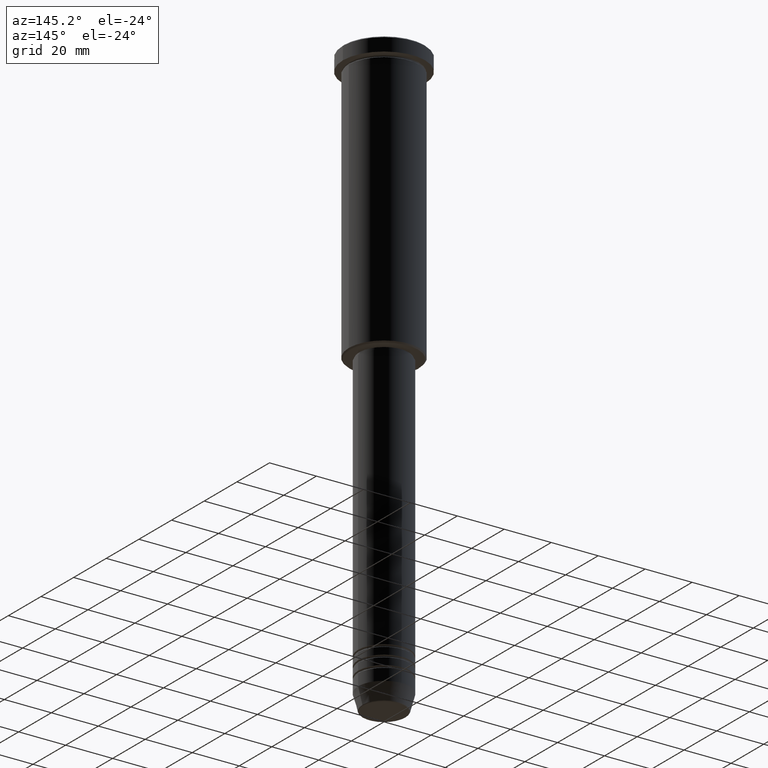
[diagram: clean part render]
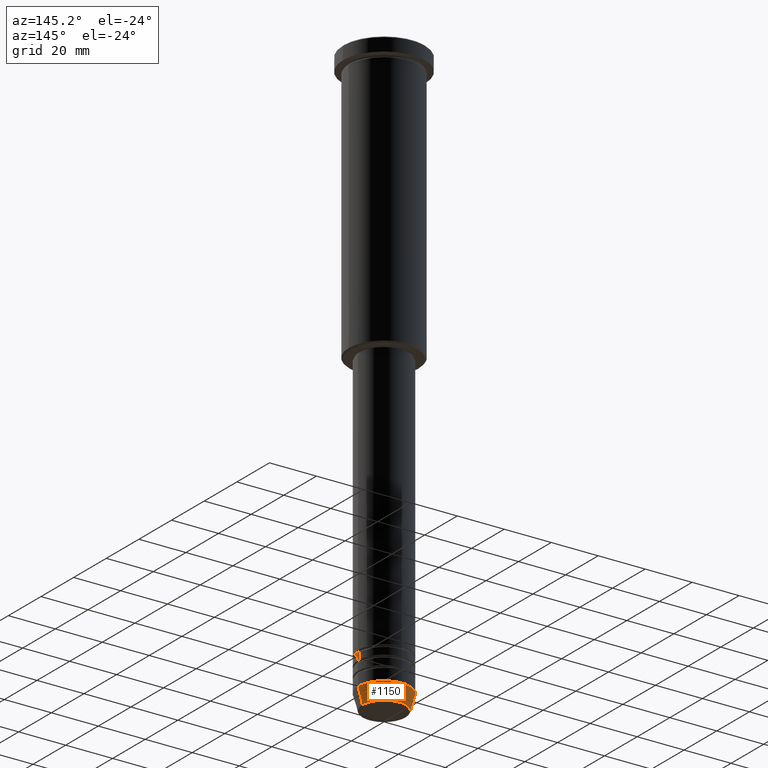
[diagram: same view with one face highlighted and labeled with its STEP entity id]
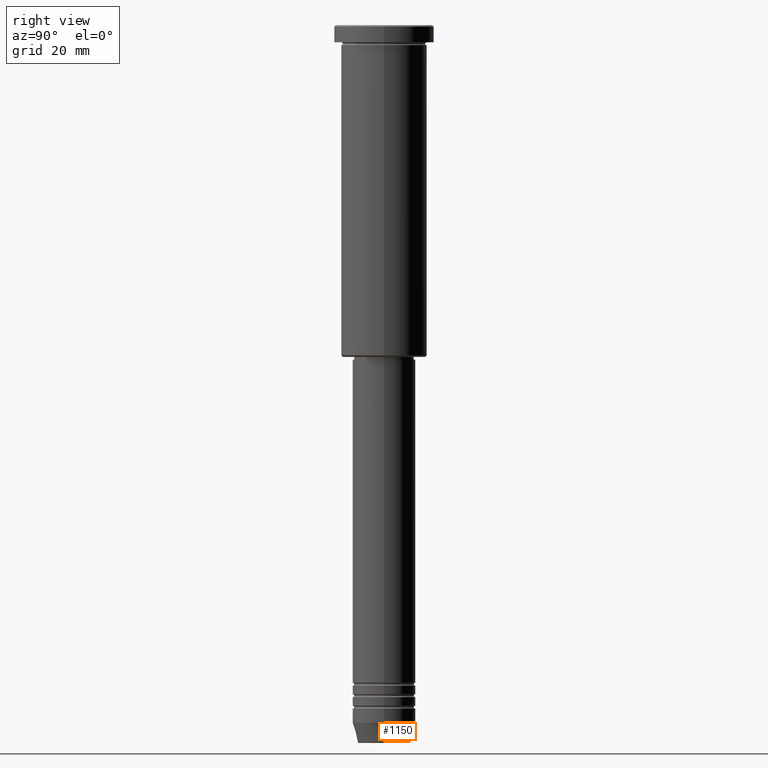
[diagram: same view with one face highlighted and labeled with its STEP entity id]
A machine part, auxiliary view. The second image highlights one B-rep face of the part: STEP entity #1150.
A second angle (right view) of the same face is appended — the face is thin or edge-on in the first view.
In plain terms, the highlighted conical surface has half-angle 15 deg.
Its self-contained STEP definition (entity closure, byte-faithful):
#14 = AXIS2_PLACEMENT_3D ( 'NONE', #77, #744, #468 ) ;
#37 = VECTOR ( 'NONE', #201, 1000.000000000000000 ) ;
#45 = VERTEX_POINT ( 'NONE', #498 ) ;
#77 = CARTESIAN_POINT ( 'NONE',  ( 0.000000000000000000, 0.000000000000000000, -244.0000000000000000 ) ) ;
#116 = CARTESIAN_POINT ( 'NONE',  ( -11.00000000000000000, 1.347111479062088405E-15, -244.0000000000000000 ) ) ;
#124 = DIRECTION ( 'NONE',  ( 1.000000000000000000, 0.000000000000000000, 0.000000000000000000 ) ) ;
#182 = FACE_OUTER_BOUND ( 'NONE', #518, .T. ) ;
#201 = DIRECTION ( 'NONE',  ( -0.2588190451025213501, 3.169619151431772337E-17, 0.9659258262890680902 ) ) ;
#202 = CARTESIAN_POINT ( 'NONE',  ( -9.223655072137189492, 1.238341722557647202E-15, -250.6294095225512422 ) ) ;
#217 = CARTESIAN_POINT ( 'NONE',  ( 0.000000000000000000, 0.000000000000000000, -250.6294095225512422 ) ) ;
#252 = ORIENTED_EDGE ( 'NONE', *, *, #481, .F. ) ;
#262 = ORIENTED_EDGE ( 'NONE', *, *, #738, .T. ) ;
#273 = CIRCLE ( 'NONE', #493, 11.00000000000000000 ) ;
#283 = ORIENTED_EDGE ( 'NONE', *, *, #359, .F. ) ;
#308 = ORIENTED_EDGE ( 'NONE', *, *, #671, .T. ) ;
#310 = CARTESIAN_POINT ( 'NONE',  ( 11.00000000000000000, 0.000000000000000000, -244.0000000000000000 ) ) ;
#334 = CARTESIAN_POINT ( 'NONE',  ( -11.00000000000000000, 1.347111479062088405E-15, -244.0000000000000000 ) ) ;
#351 = CONICAL_SURFACE ( 'NONE', #14, 11.00000000000000000, 0.2617993877991500740 ) ;
#359 = EDGE_CURVE ( 'NONE', #663, #824, #273, .T. ) ;
#367 = AXIS2_PLACEMENT_3D ( 'NONE', #217, #578, #794 ) ;
#377 = VERTEX_POINT ( 'NONE', #202 ) ;
#384 = LINE ( 'NONE', #116, #37 ) ;
#446 = DIRECTION ( 'NONE',  ( 0.2588190451025213501, 0.000000000000000000, 0.9659258262890680902 ) ) ;
#468 = DIRECTION ( 'NONE',  ( 1.000000000000000000, 0.000000000000000000, 0.000000000000000000 ) ) ;
#475 = CARTESIAN_POINT ( 'NONE',  ( 0.000000000000000000, 0.000000000000000000, -244.0000000000000000 ) ) ;
#481 = EDGE_CURVE ( 'NONE', #45, #663, #769, .T. ) ;
#493 = AXIS2_PLACEMENT_3D ( 'NONE', #475, #859, #124 ) ;
#498 = CARTESIAN_POINT ( 'NONE',  ( 9.223655072137189492, 0.000000000000000000, -250.6294095225512422 ) ) ;
#518 = EDGE_LOOP ( 'NONE', ( #262, #308, #283, #252 ) ) ;
#578 = DIRECTION ( 'NONE',  ( -0.000000000000000000, -0.000000000000000000, 1.000000000000000000 ) ) ;
#663 = VERTEX_POINT ( 'NONE', #754 ) ;
#671 = EDGE_CURVE ( 'NONE', #377, #824, #384, .T. ) ;
#719 = CIRCLE ( 'NONE', #367, 9.223655072137189492 ) ;
#738 = EDGE_CURVE ( 'NONE', #45, #377, #719, .T. ) ;
#744 = DIRECTION ( 'NONE',  ( -0.000000000000000000, -0.000000000000000000, 1.000000000000000000 ) ) ;
#754 = CARTESIAN_POINT ( 'NONE',  ( 11.00000000000000000, 0.000000000000000000, -244.0000000000000000 ) ) ;
#769 = LINE ( 'NONE', #310, #1095 ) ;
#794 = DIRECTION ( 'NONE',  ( 1.000000000000000000, 0.000000000000000000, 0.000000000000000000 ) ) ;
#824 = VERTEX_POINT ( 'NONE', #334 ) ;
#859 = DIRECTION ( 'NONE',  ( -0.000000000000000000, -0.000000000000000000, 1.000000000000000000 ) ) ;
#1095 = VECTOR ( 'NONE', #446, 1000.000000000000000 ) ;
#1150 = ADVANCED_FACE ( 'NONE', ( #182 ), #351, .T. ) ;